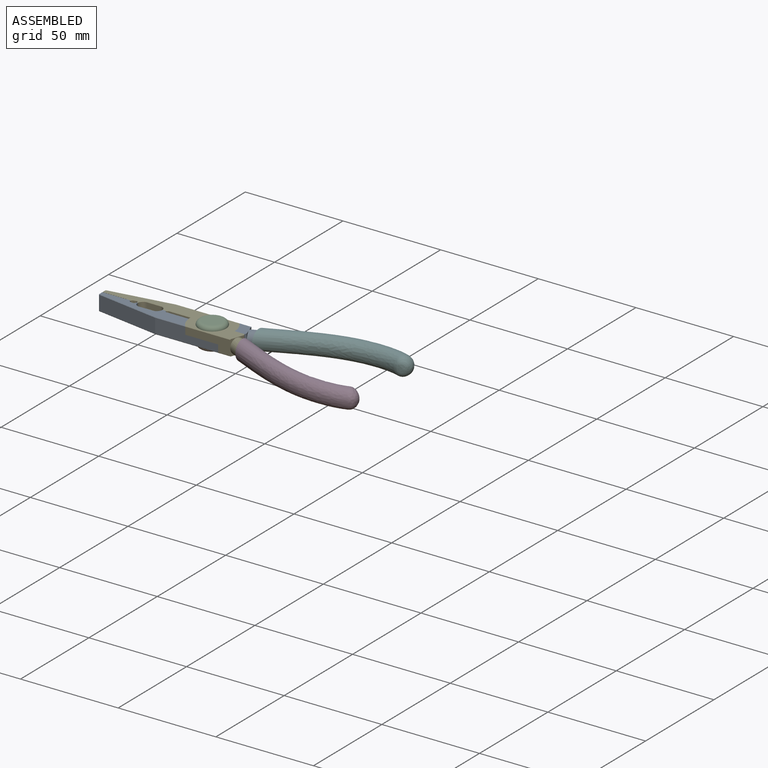
[diagram: assembled view]
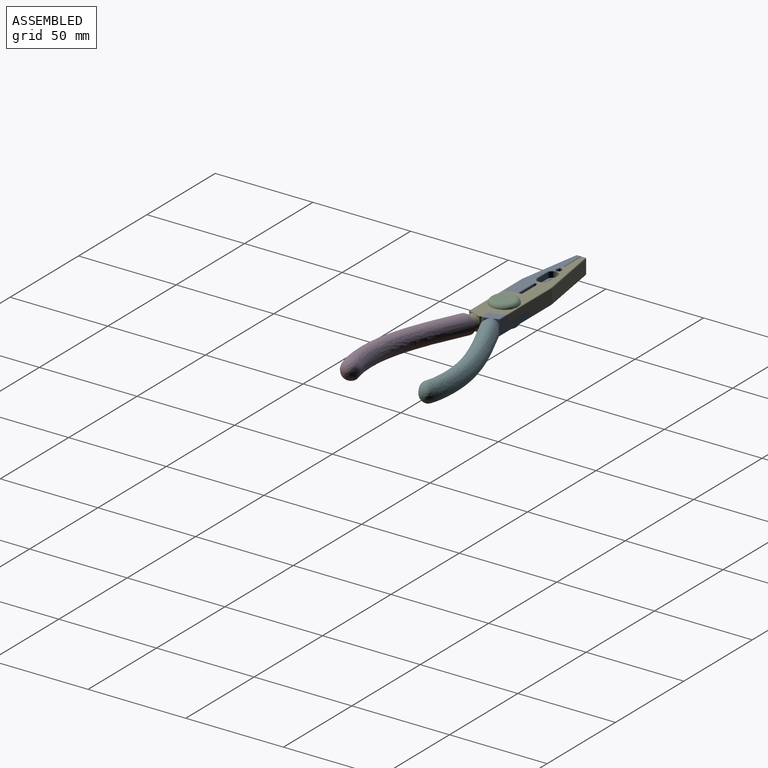
[diagram: assembled view, second angle]
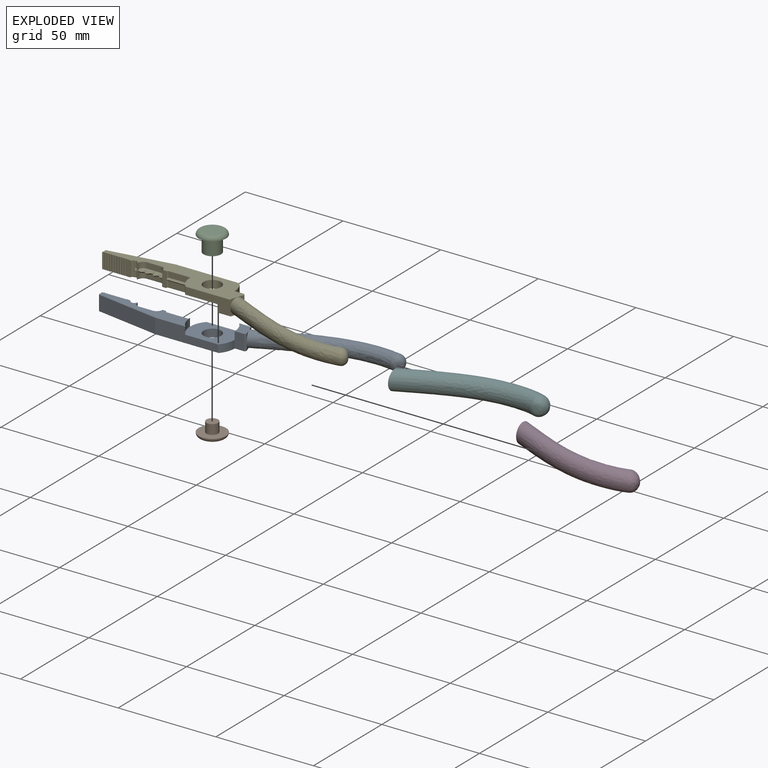
[diagram: exploded view]
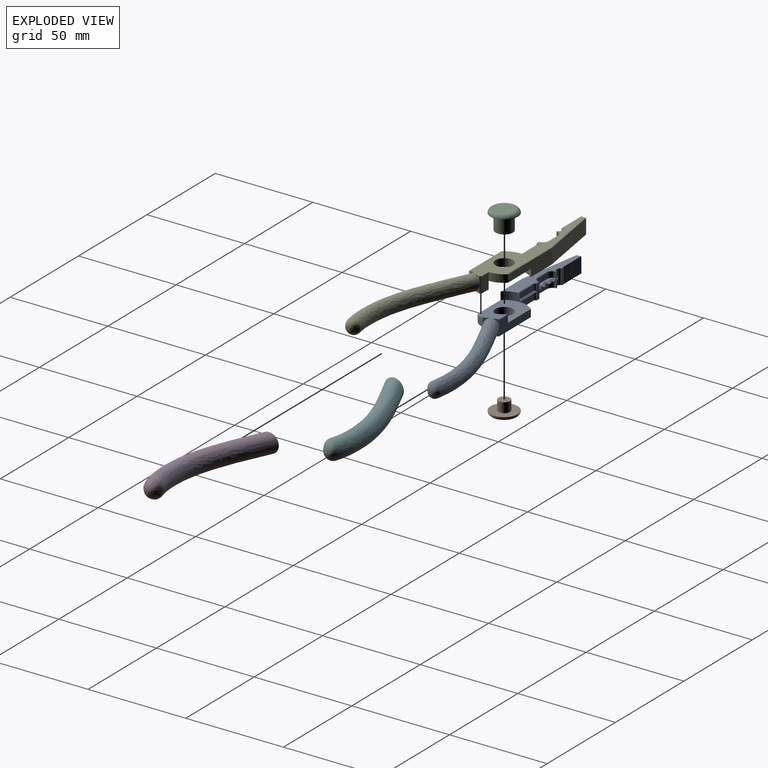
[diagram: exploded view, second angle]
ASSEMBLY  parts=6 mates=5
PART A: 135 faces, bbox 143.5x33.4x16.1 mm
  f0: plane 8x2.5mm, normal (0,1,0), area 4.1mm2, adj f1,f2,f3,f4,f5,f6,f7,f8
  f1: cylinder r=1.25mm len=3.75mm, axis (0,0,1), area 6.9mm2, adj f0,f2,f12,f13
  f2: cone r=1.25mm half-angle=45deg, axis (0,0,1), area 0.8mm2, adj f0,f1,f14,f15
  f3: cone r=2.75mm half-angle=45deg, axis (0,0,1), area 1.6mm2, adj f0,f4,f14,f16
  f4: cylinder r=2.75mm len=3.7mm, axis (0,0,1), area 13mm2, adj f0,f3,f5,f17,f18
  f5: plane 2.16x0.91mm, normal (0,0.71,0.71), area 1.8mm2, adj f0,f4,f18,f19
  f6: cylinder r=0.75mm len=1.5mm, axis (0,0,1), area 0.2mm2, adj f0,f19,f20,f21
  f7: plane 2.16x0.91mm, normal (0,0.71,-0.71), area 1.8mm2, adj f0,f8,f20,f22
  f8: cylinder r=2.75mm len=3.7mm, axis (0,0,-1), area 13mm2, adj f0,f7,f9,f22,f23
  f9: cone r=2.75mm half-angle=45deg, axis (0,0,-1), area 1.6mm2, adj f0,f8,f24,f25
  f10: cone r=1.25mm half-angle=45deg, axis (0,0,-1), area 0.8mm2, adj f0,f11,f24,f26
  f11: cylinder r=1.25mm len=3.75mm, axis (0,0,-1), area 7.1mm2, adj f0,f10,f27,f28
  f12: plane 1.92x1.45mm, normal (0,0.35,0.94), area 1.2mm2, adj f1,f13,f28,f29
  f13: plane 3.75x1.12mm, normal (0.24,0.97,0), area 3.5mm2, adj f1,f12,f15,f29,f30
  f14: plane 47.55x7.5mm, normal (0,0,1), area 204.9mm2, adj f2,f3,f15,f16,f31,f32,f33,f34
  f15: plane 1.03x0.5mm, normal (0.17,0.69,0.71), area 0.4mm2, adj f2,f13,f14,f31
  f16: plane 7x0.25mm, normal (0,0.71,0.71), area 2.5mm2, adj f3,f14,f17,f81
  f17: plane 7x2.95mm, normal (0,1,0), area 20.7mm2, adj f4,f16,f18,f82
  f18: plane 12.29x2mm, normal (0,0,1), area 14.8mm2, adj f4,f5,f17,f19,f82,f83,f84,f85
  f19: cone r=0.75mm half-angle=45deg, axis (0,0,1), area 3.1mm2, adj f5,f6,f18,f87
  f20: cone r=1.5mm half-angle=45deg, axis (0,0,-1), area 3.1mm2, adj f6,f7,f22,f88
  f21: plane 1.5x0.1mm, normal (0,1,0), area 0.2mm2, adj f6,f87,f88,f89
  f22: plane 12.29x2mm, normal (0,0,-1), area 14.8mm2, adj f7,f8,f20,f23,f88,f90,f91,f92
  f23: plane 7x2.95mm, normal (0,1,0), area 20.7mm2, adj f8,f22,f25,f92
  f24: plane 73.16x15mm, normal (0,0,-1), area 498.3mm2, adj f9,f10,f25,f26,f32,f33,f34,f35
  f25: plane 7x0.25mm, normal (0,0.71,-0.71), area 2.5mm2, adj f9,f23,f24,f97
  f26: plane 1.03x0.5mm, normal (0.17,0.69,-0.71), area 0.4mm2, adj f10,f24,f27,f96
  f27: plane 3.92x1.14mm, normal (0.24,0.97,0), area 3.7mm2, adj f11,f26,f28,f30,f110
  f28: plane 1.8x1.38mm, normal (0,0.24,-0.97), area 1.1mm2, adj f11,f12,f27,f110
  f29: bspline ~1.47x1.41mm, area 0.4mm2, adj f12,f13,f30,f110
  f30: cylinder r=1mm len=7.5mm, axis (0,0,1), area 11.8mm2, adj f13,f27,f29,f31,f32,f96,f110
  f31: cone r=1mm half-angle=45deg, axis (0,0,1), area 0.6mm2, adj f14,f15,f30,f32
  f32: plane 8x2.01mm, normal (0,1,0), area 16mm2, adj f14,f24,f30,f31,f33,f96
  f33: plane 8x0.25mm, normal (-0.71,0.7,0), area 2.8mm2, adj f14,f24,f32,f34
  f34: plane 8x0.25mm, normal (0,1,0), area 2mm2, adj f14,f24,f33,f35
  f35: plane 8x0.25mm, normal (0.71,0.7,0), area 2.8mm2, adj f14,f24,f34,f36
  f36: plane 8x0.51mm, normal (0,1,0), area 4.1mm2, adj f14,f24,f35,f37
  f37: plane 8x0.25mm, normal (-0.71,0.7,0), area 2.8mm2, adj f14,f24,f36,f38
  f38: plane 8x0.25mm, normal (0,1,0), area 2mm2, adj f14,f24,f37,f39
  f39: plane 8x0.25mm, normal (0.71,0.7,0), area 2.8mm2, adj f14,f24,f38,f40
  f40: plane 8x0.51mm, normal (0,1,0), area 4.1mm2, adj f14,f24,f39,f41
  f41: plane 8x0.25mm, normal (-0.71,0.7,0), area 2.8mm2, adj f14,f24,f40,f42
  f42: plane 8x0.25mm, normal (0,1,0), area 2mm2, adj f14,f24,f41,f43
  f43: plane 8x0.25mm, normal (0.71,0.7,0), area 2.8mm2, adj f14,f24,f42,f44
  f44: plane 8x0.51mm, normal (0,1,0), area 4.1mm2, adj f14,f24,f43,f45
  f45: plane 8x0.25mm, normal (-0.71,0.7,0), area 2.8mm2, adj f14,f24,f44,f46
  f46: plane 8x0.25mm, normal (0,1,0), area 2mm2, adj f14,f24,f45,f47
  f47: plane 8x0.25mm, normal (0.71,0.7,0), area 2.8mm2, adj f14,f24,f46,f48
  f48: plane 8x0.51mm, normal (0,1,0), area 4.1mm2, adj f14,f24,f47,f49
  f49: plane 8x0.25mm, normal (-0.71,0.7,0), area 2.8mm2, adj f14,f24,f48,f50
  f50: plane 8x0.25mm, normal (0,1,0), area 2mm2, adj f14,f24,f49,f51
  f51: plane 8x0.25mm, normal (0.71,0.7,0), area 2.8mm2, adj f14,f24,f50,f52
  f52: plane 8x0.51mm, normal (0,1,0), area 4.1mm2, adj f14,f24,f51,f53
  f53: plane 8x0.25mm, normal (-0.71,0.7,0), area 2.8mm2, adj f14,f24,f52,f54
  f54: plane 8x0.25mm, normal (0,1,0), area 2mm2, adj f14,f24,f53,f55
  f55: plane 8x0.25mm, normal (0.71,0.7,0), area 2.8mm2, adj f14,f24,f54,f56
  f56: plane 8x0.51mm, normal (0,1,0), area 4.1mm2, adj f14,f24,f55,f57
  f57: plane 8x0.25mm, normal (-0.71,0.7,0), area 2.8mm2, adj f14,f24,f56,f58
  f58: plane 8x0.25mm, normal (0,1,0), area 2mm2, adj f14,f24,f57,f59
  f59: plane 8x0.25mm, normal (0.71,0.7,0), area 2.8mm2, adj f14,f24,f58,f60
  f60: plane 8x0.51mm, normal (0,1,0), area 4.1mm2, adj f14,f24,f59,f61
  f61: plane 8x0.25mm, normal (-0.71,0.7,0), area 2.8mm2, adj f14,f24,f60,f62
  f62: plane 8x0.25mm, normal (0,1,0), area 2mm2, adj f14,f24,f61,f63
  f63: plane 8x0.25mm, normal (0.71,0.7,0), area 2.8mm2, adj f14,f24,f62,f64
  f64: plane 8x0.51mm, normal (0,1,0), area 4.1mm2, adj f14,f24,f63,f65
  f65: plane 8x0.25mm, normal (-0.71,0.7,0), area 2.8mm2, adj f14,f24,f64,f66
  f66: plane 8x0.25mm, normal (0,1,0), area 2mm2, adj f14,f24,f65,f67
  f67: plane 8x0.25mm, normal (0.71,0.7,0), area 2.8mm2, adj f14,f24,f66,f68
  f68: plane 8x0.51mm, normal (0,1,0), area 4.1mm2, adj f14,f24,f67,f69
  f69: plane 8x0.25mm, normal (-0.71,0.7,0), area 2.8mm2, adj f14,f24,f68,f70
  f70: plane 8x0.25mm, normal (0,1,0), area 2mm2, adj f14,f24,f69,f71
  f71: plane 8x0.25mm, normal (0.71,0.7,0), area 2.8mm2, adj f14,f24,f70,f72
  f72: plane 8x0.5mm, normal (0,1,0), area 3.9mm2, adj f14,f24,f71,f73,f109,f111
  f73: plane 2.29x0.25mm, normal (-0.71,0,0.71), area 0.8mm2, adj f14,f72,f111,f112
  f74: plane 32.4x5.46mm, normal (-0.11,-0.7,0.71), area 11.6mm2, adj f14,f75,f112,f113
  f75: plane 15.43x0.25mm, normal (0,-0.71,0.71), area 5.4mm2, adj f14,f74,f76,f114
  f76: cylinder r=11.44mm len=7.75mm, axis (0,0,1), area 34mm2, adj f14,f75,f77,f114,f115
  f77: plane 4x1mm, normal (-1,0,0), area 2.7mm2, adj f14,f76,f78,f116,f117
  f78: plane 11.44x0.25mm, normal (0,0.71,0.71), area 4mm2, adj f14,f77,f79,f117
  f79: cone r=0.75mm half-angle=45deg, axis (0,0,1), area 0.5mm2, adj f14,f78,f80,f118
  f80: plane 8x3.81mm, normal (0,1,0), area 16.5mm2, adj f14,f24,f79,f81,f82,f83,f91,f92
  f81: cone r=2.75mm half-angle=45deg, axis (0,0,1), area 1.6mm2, adj f14,f16,f80,f82
  f82: cylinder r=2.75mm len=3.7mm, axis (0,0,1), area 13mm2, adj f17,f18,f80,f81,f83
  f83: plane 1.89x0.89mm, normal (0,0.71,0.71), area 1.5mm2, adj f18,f80,f82,f84
  f84: cone r=1mm half-angle=45deg, axis (0,0,1), area 3.9mm2, adj f18,f83,f85,f120
  f85: plane 1.39x0.89mm, normal (0,0.71,0.71), area 0.7mm2, adj f18,f84,f86,f121
  f86: cone r=1.25mm half-angle=45deg, axis (0,0,1), area 4.7mm2, adj f18,f85,f87,f89
  f87: plane 1.66x0.91mm, normal (0,0.71,0.71), area 0.9mm2, adj f18,f19,f21,f86
  f88: plane 1.66x0.91mm, normal (0,0.71,-0.71), area 0.9mm2, adj f20,f21,f22,f93
  f89: cylinder r=1.25mm len=2.5mm, axis (0,0,1), area 0.4mm2, adj f21,f86,f93,f121
  f90: cone r=1.75mm half-angle=45deg, axis (0,0,-1), area 3.9mm2, adj f22,f91,f94,f120
  f91: plane 1.89x0.89mm, normal (0,0.71,-0.71), area 1.5mm2, adj f22,f80,f90,f92
  f92: cylinder r=2.75mm len=3.7mm, axis (0,0,-1), area 13mm2, adj f22,f23,f80,f91,f97
  f93: cone r=2mm half-angle=45deg, axis (0,0,-1), area 4.7mm2, adj f22,f88,f89,f94
  f94: plane 1.39x0.89mm, normal (0,0.71,-0.71), area 0.7mm2, adj f22,f90,f93,f121
  f95: cylinder r=4.5mm len=9mm, axis (0,0,1), area 113.1mm2, adj f24,f115
  f96: cone r=1.25mm half-angle=45deg, axis (0,0,-1), area 0.6mm2, adj f24,f26,f30,f32
  f97: cone r=2.75mm half-angle=45deg, axis (0,0,-1), area 1.6mm2, adj f24,f25,f80,f92
  f98: cone r=0.75mm half-angle=45deg, axis (0,0,-1), area 0.5mm2, adj f24,f80,f99,f119
  f99: plane 11.44x0.25mm, normal (0,0.71,-0.71), area 4mm2, adj f24,f98,f100,f122
  f100: plane 4x1mm, normal (-1,0,0), area 2.7mm2, adj f24,f99,f101,f122,f123
  f101: cylinder r=11.44mm len=7.75mm, axis (0,0,1), area 34mm2, adj f24,f100,f102,f115,f124
  f102: plane 23.31x0.25mm, normal (0,0.71,-0.71), area 8.2mm2, adj f24,f101,f103,f124
  f103: plane 8x6.87mm, normal (0.94,0.33,0), area 58.1mm2, adj f24,f102,f104,f124,f125,f126
  f104: plane 8x0.88mm, normal (0.86,-0.5,0), area 8.2mm2, adj f24,f103,f105,f125
  f105: plane 8x5mm, normal (0,-1,0), area 40mm2, adj f24,f104,f106,f125,f127
  f106: cylinder r=11.44mm len=7.75mm, axis (0,0,1), area 34mm2, adj f24,f105,f107,f114,f115
  f107: plane 32.5x0.25mm, normal (0,-0.71,-0.71), area 11.4mm2, adj f24,f106,f108,f114
  f108: plane 32.4x5.46mm, normal (-0.11,-0.7,-0.71), area 11.6mm2, adj f24,f107,f113,f128
  f109: plane 2.29x0.25mm, normal (-0.71,0,-0.71), area 0.8mm2, adj f24,f72,f111,f128
  f110: bspline ~1.49x1.45mm, area 0.4mm2, adj f27,f28,f29,f30
  f111: plane 7.5x2.29mm, normal (-1,0,0), area 17.2mm2, adj f72,f73,f109,f129
  f112: plane 0.25x0.25mm, normal (-0.61,-0.52,0.61), area 0.1mm2, adj f73,f74,f129
  f113: plane 32.38x7.5mm, normal (-0.16,-0.99,0), area 246mm2, adj f74,f108,f114,f129
  f114: plane 32.27x7.5mm, normal (0,-1,0), area 178.9mm2, adj f75,f76,f106,f107,f113,f115
  f115: plane 22.89x15.5mm, normal (0,0,1), area 261.8mm2, adj f76,f95,f101,f106,f114,f124,f127
  f116: plane 12.51x1.07mm, normal (0,0.71,0.71), area 12.8mm2, adj f77,f117,f118,f123
  f117: plane 11.44x3mm, normal (0,1,0), area 34.3mm2, adj f77,f78,f116,f118
  f118: cylinder r=0.75mm len=3.75mm, axis (0,0,1), area 4mm2, adj f79,f80,f116,f117
  f119: cylinder r=0.75mm len=3.75mm, axis (0,0,-1), area 4mm2, adj f80,f98,f122,f123
  f120: cylinder r=1mm len=2mm, axis (0,0,1), area 0.3mm2, adj f80,f84,f90,f121
  f121: plane 1.25x0.1mm, normal (0,1,0), area 0.1mm2, adj f85,f89,f94,f120
  f122: plane 11.44x3mm, normal (0,1,0), area 34.3mm2, adj f99,f100,f119,f123
  f123: plane 12.51x1.07mm, normal (0,0.71,-0.71), area 12.8mm2, adj f100,f116,f119,f122
  f124: plane 23x7.5mm, normal (0,1,0), area 109.3mm2, adj f101,f102,f103,f115,f126,f127
  f125: plane 8.32x7.5mm, normal (0,0,1), area 40.2mm2, adj f103,f104,f105,f126,f127
  f126: plane 6.25x0.25mm, normal (0,0.71,0.71), area 2.2mm2, adj f103,f124,f125,f127
  f127: cylinder r=11.44mm len=7.75mm, axis (0,0,1), area 34mm2, adj f105,f115,f124,f125,f126
  f128: plane 0.25x0.25mm, normal (-0.61,-0.52,-0.61), area 0.1mm2, adj f108,f109,f129
  f129: plane 7.5x0.25mm, normal (-0.76,-0.65,0), area 2.4mm2, adj f111,f112,f113,f128
  f130: plane 1.9x0.99mm, normal (0.72,-0.7,0), area 2mm2, adj f131
  f131: bspline ~8.89x7.41mm, area 80.2mm2, adj f130,f132
  f132: bspline ~66.81x23.21mm, area 1508.7mm2, adj f131,f133
  f133: bspline ~15.8x10.4mm, area 99.8mm2, adj f132,f134
  f134: plane 7.91x6.81mm, normal (-0.94,-0.33,0), area 44.7mm2, adj f133
PART B: 5 faces, bbox 15.2x7x15.2 mm
  f0: cylinder r=3mm len=6mm, axis (0,1,0), area 94.2mm2, adj f1,f3
  f1: plane 6x6mm, normal (0,-1,0), area 28.3mm2, adj f0
  f2: plane 10x10mm, normal (0,1,0), area 78.5mm2, adj f4
  f3: plane 14x14mm, normal (0,-1,0), area 125.7mm2, adj f0,f4
  f4: torus R=5mm, axis (0,-1,0), area 123.8mm2, adj f2,f3
PART C: 7 faces, bbox 15.2x10x15.2 mm
  f0: cylinder r=4.5mm len=9mm, axis (0,1,0), area 226.2mm2, adj f1,f3
  f1: plane 9x9mm, normal (0,-1,0), area 35.3mm2, adj f0,f5
  f2: plane 10x10mm, normal (0,1,0), area 78.5mm2, adj f4
  f3: plane 14x14mm, normal (0,-1,0), area 90.3mm2, adj f0,f4
  f4: torus R=5mm, axis (0,-1,0), area 123.8mm2, adj f2,f3
  f5: cylinder r=3mm len=6mm, axis (0,-1,0), area 94.2mm2, adj f1,f6
  f6: plane 6x6mm, normal (0,-1,0), area 28.3mm2, adj f5
PART D: 7 faces, bbox 76.2x25.3x20 mm
  f0: plane 10x10mm, normal (-1,0,0), area 28.3mm2, adj f2,f5
  f1: plane 2x1.39mm, normal (0.36,-0.93,0), area 2.2mm2, adj f3
  f2: bspline ~71.76x25.34mm, area 2010.3mm2, adj f0,f3
  f3: bspline ~13.94x13.65mm, area 138.1mm2, adj f1,f2
  f4: plane 2x1.06mm, normal (-0.72,0.7,0), area 2.3mm2, adj f6
  f5: bspline ~66.84x23.31mm, area 1527.8mm2, adj f0,f6
  f6: bspline ~8.98x7.48mm, area 81.7mm2, adj f4,f5
PART E: same geometry as A
PART F: same geometry as D
PLACE A t=(-125.54,-23.79,-18.29)mm
PLACE B rot(axis=(-1,0,0),90deg) t=(-119.42,-10.59,-22.34)mm
PLACE C rot(axis=(1,0,0),90deg) t=(-119.42,-10.59,-14.34)mm
PLACE D rot(axis=(1,0,0),180deg) t=(-104.57,21.55,-18.39)mm
PLACE E rot(axis=(1,0,0),180deg) t=(-125.54,2.6,-18.39)mm
PLACE F t=(-104.57,-42.74,-18.29)mm
MATE fastened C.f0 <-> E.f76  axis (0,0,-1) through (-119.42,-10.59,-14.34)mm
MATE revolute E.f76 <-> A.f76  axis (0,0,-1) through (-119.42,-10.59,-18.34)mm
MATE fastened F.f0 <-> A.f132  axis (-1,0,0) through (-99.83,-4.52,-18.29)mm
MATE fastened D.f0 <-> E.f132  axis (-1,0,0) through (-99.83,-16.67,-18.39)mm
MATE fastened B.f0 <-> A.f76  axis (0,0,1) through (-119.42,-10.59,-22.34)mm
